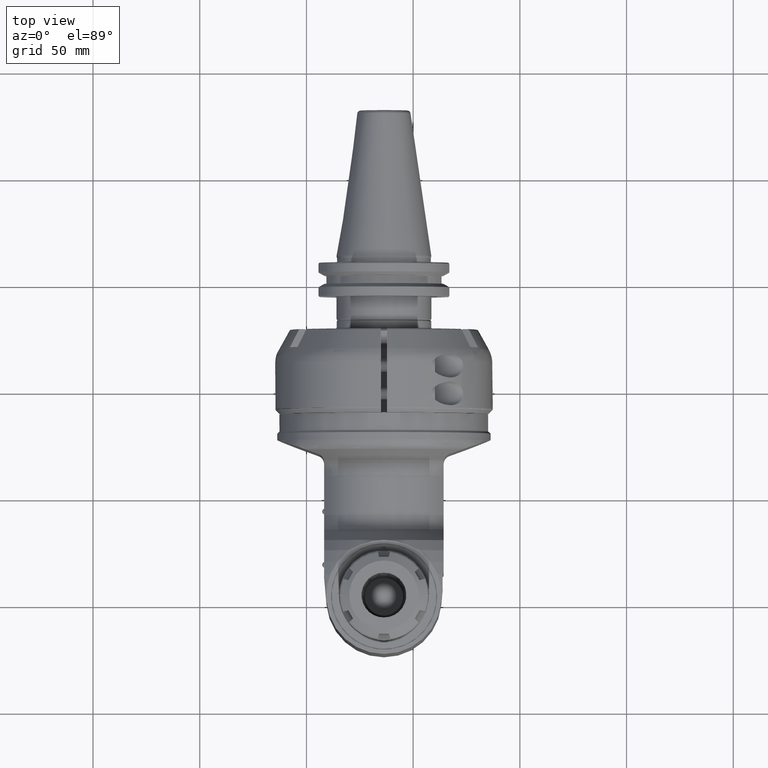
[diagram: clean part render]
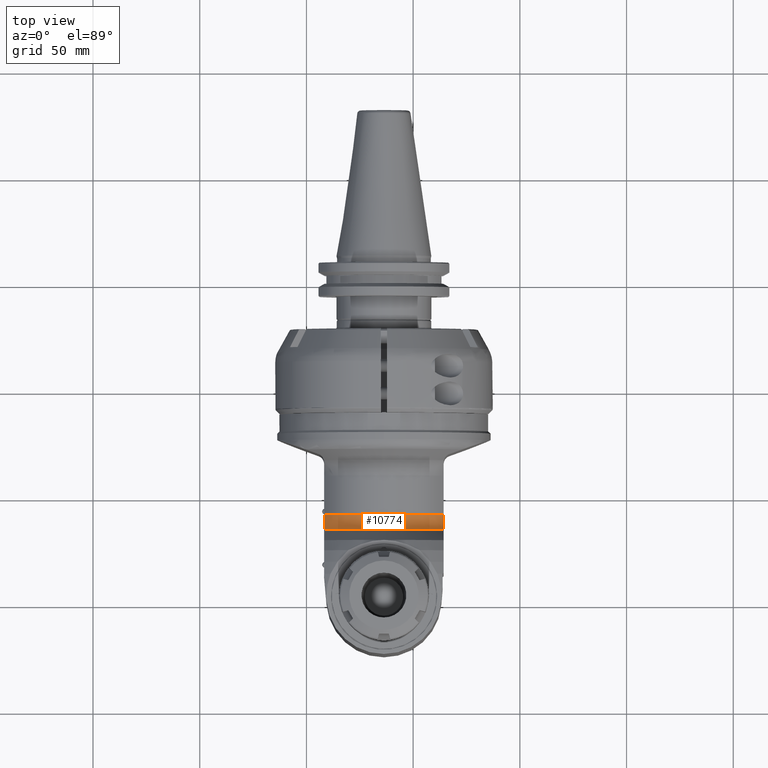
[diagram: same view with one face highlighted and labeled with its STEP entity id]
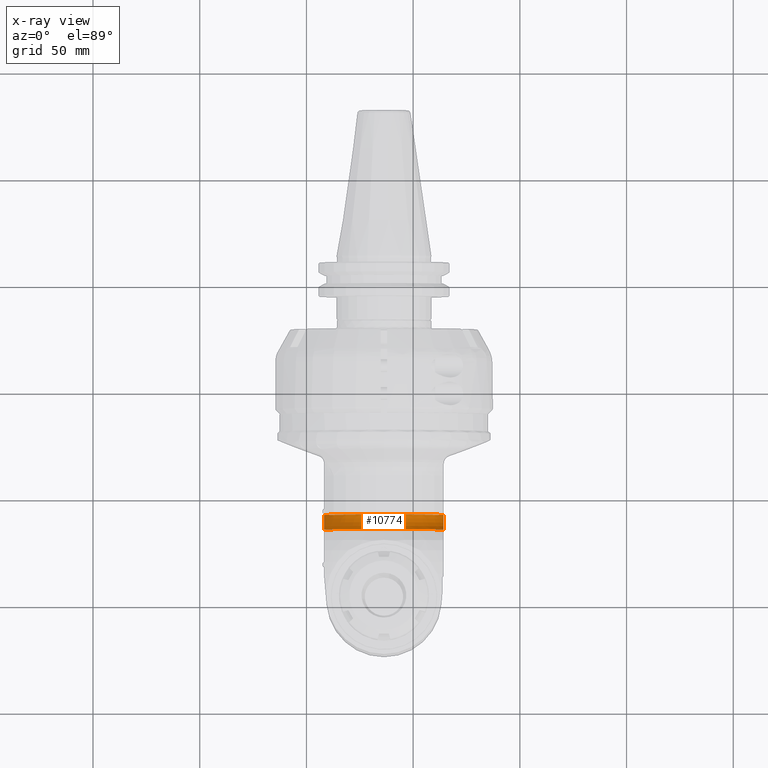
[diagram: x-ray of the same camera — body ghosted, the highlighted face saturated]
A machine part, top view. The second image highlights one B-rep face of the part: STEP entity #10774.
The next image is the same camera in x-ray: the body ghosted, the highlighted face saturated — about 0% of this face is hidden behind the body in this view.
In plain terms, the highlighted toroidal blend (fillet) surface has major radius 40 mm and minor (blend) radius 8 mm.
Its self-contained STEP definition (entity closure, byte-faithful):
#292=B_SPLINE_CURVE_WITH_KNOTS('',3,(#21186,#21187,#21188,#21189,#21190,
#21191,#21192,#21193,#21194,#21195,#21196,#21197,#21198,#21199),
 .UNSPECIFIED.,.F.,.F.,(4,2,2,2,2,2,4),(-3.92313274375493,-3.77858431950851,
-3.54205696695616,-3.36013929421605,-3.17822162147595,-3.04862540059965,
-2.93602857360432),.UNSPECIFIED.);
#301=B_SPLINE_CURVE_WITH_KNOTS('',3,(#21353,#21354,#21355,#21356,#21357,
#21358,#21359,#21360,#21361,#21362,#21363,#21364,#21365,#21366),
 .UNSPECIFIED.,.F.,.F.,(4,2,2,2,2,2,4),(-3.9243895348401,-3.85672178121539,
-3.6417920743864,-3.42626231511953,-3.21073255585266,-3.06178101041217,
-2.93597407218818),.UNSPECIFIED.);
#2870=FACE_OUTER_BOUND('',#3585,.T.);
#3585=EDGE_LOOP('',(#9343,#9344,#9345,#9346));
#4255=CIRCLE('',#11943,32.);
#4256=CIRCLE('',#11945,36.);
#5148=VERTEX_POINT('',#21183);
#5149=VERTEX_POINT('',#21185);
#5173=VERTEX_POINT('',#21347);
#5174=VERTEX_POINT('',#21351);
#6586=EDGE_CURVE('',#5149,#5148,#292,.T.);
#6615=EDGE_CURVE('',#5148,#5173,#4255,.T.);
#6616=EDGE_CURVE('',#5149,#5174,#4256,.T.);
#6617=EDGE_CURVE('',#5174,#5173,#301,.T.);
#9343=ORIENTED_EDGE('',*,*,#6616,.F.);
#9344=ORIENTED_EDGE('',*,*,#6586,.T.);
#9345=ORIENTED_EDGE('',*,*,#6615,.T.);
#9346=ORIENTED_EDGE('',*,*,#6617,.F.);
#10300=TOROIDAL_SURFACE('',#11944,40.,8.);
#10774=ADVANCED_FACE('',(#2870),#10300,.F.);
#11943=AXIS2_PLACEMENT_3D('',#21349,#14687,#14688);
#11944=AXIS2_PLACEMENT_3D('',#21350,#14689,#14690);
#11945=AXIS2_PLACEMENT_3D('',#21352,#14691,#14692);
#14687=DIRECTION('center_axis',(1.,0.,0.));
#14688=DIRECTION('ref_axis',(0.,-1.,0.));
#14689=DIRECTION('center_axis',(1.,0.,0.));
#14690=DIRECTION('ref_axis',(0.,-1.,0.));
#14691=DIRECTION('center_axis',(1.,0.,0.));
#14692=DIRECTION('ref_axis',(0.,-0.628539361054693,0.777777777777791));
#21183=CARTESIAN_POINT('',(51.38119784648,-15.49193338483,28.));
#21185=CARTESIAN_POINT('',(58.30940107676,-22.62741699797,28.));
#21186=CARTESIAN_POINT('Ctrl Pts',(58.3094010767562,-22.6274169979714,28.));
#21187=CARTESIAN_POINT('Ctrl Pts',(58.1351990449167,-22.1473726465381,28.));
#21188=CARTESIAN_POINT('Ctrl Pts',(57.9345741249346,-21.6588360308127,28.));
#21189=CARTESIAN_POINT('Ctrl Pts',(57.3473059591154,-20.3989143849032,28.));
#21190=CARTESIAN_POINT('Ctrl Pts',(56.9216365696334,-19.6460707325903,28.));
#21191=CARTESIAN_POINT('Ctrl Pts',(56.138105696541,-18.4921239661789,28.));
#21192=CARTESIAN_POINT('Ctrl Pts',(55.7304165671847,-17.9652022129463,28.));
#21193=CARTESIAN_POINT('Ctrl Pts',(54.820668957877,-17.0081024201193,28.));
#21194=CARTESIAN_POINT('Ctrl Pts',(54.317498824113,-16.5789816504194,28.));
#21195=CARTESIAN_POINT('Ctrl Pts',(53.4402390877892,-16.0234209939818,28.));
#21196=CARTESIAN_POINT('Ctrl Pts',(52.9735728260955,-15.7977099228234,28.));
#21197=CARTESIAN_POINT('Ctrl Pts',(52.201408746999,-15.5620993782773,28.));
#21198=CARTESIAN_POINT('Ctrl Pts',(51.7565206031311,-15.4919333848297,28.));
#21199=CARTESIAN_POINT('Ctrl Pts',(51.38119784648,-15.4919333848297,28.));
#21347=CARTESIAN_POINT('',(51.38119784648,-15.49193338483,-28.));
#21349=CARTESIAN_POINT('Origin',(51.38119784648,0.,0.));
#21350=CARTESIAN_POINT('Origin',(51.38119784648,0.,0.));
#21351=CARTESIAN_POINT('',(58.30940107676,-22.62741699797,-28.));
#21352=CARTESIAN_POINT('Origin',(58.30940107676,0.,0.));
#21353=CARTESIAN_POINT('Ctrl Pts',(58.3094010767562,-22.6274169979714,-28.));
#21354=CARTESIAN_POINT('Ctrl Pts',(58.2258006286174,-22.3970412527373,-28.));
#21355=CARTESIAN_POINT('Ctrl Pts',(58.1367913893094,-22.1663840201593,-28.));
#21356=CARTESIAN_POINT('Ctrl Pts',(57.7451812007965,-21.2114016502261,-28.));
#21357=CARTESIAN_POINT('Ctrl Pts',(57.3970525053331,-20.5059615925195,-28.));
#21358=CARTESIAN_POINT('Ctrl Pts',(56.6780494097556,-19.2642402902718,-28.));
#21359=CARTESIAN_POINT('Ctrl Pts',(56.2389464277774,-18.6085394528521,-28.));
#21360=CARTESIAN_POINT('Ctrl Pts',(55.2387518590675,-17.407552366296,-28.));
#21361=CARTESIAN_POINT('Ctrl Pts',(54.67677492327,-16.8630037215125,-28.));
#21362=CARTESIAN_POINT('Ctrl Pts',(53.6865443274882,-16.1590740807169,-28.));
#21363=CARTESIAN_POINT('Ctrl Pts',(53.1632903192327,-15.8741350537825,-28.));
#21364=CARTESIAN_POINT('Ctrl Pts',(52.2960934451707,-15.5795640532649,-28.));
#21365=CARTESIAN_POINT('Ctrl Pts',(51.8005543072266,-15.4919333848297,-28.));
#21366=CARTESIAN_POINT('Ctrl Pts',(51.38119784648,-15.4919333848297,-28.));